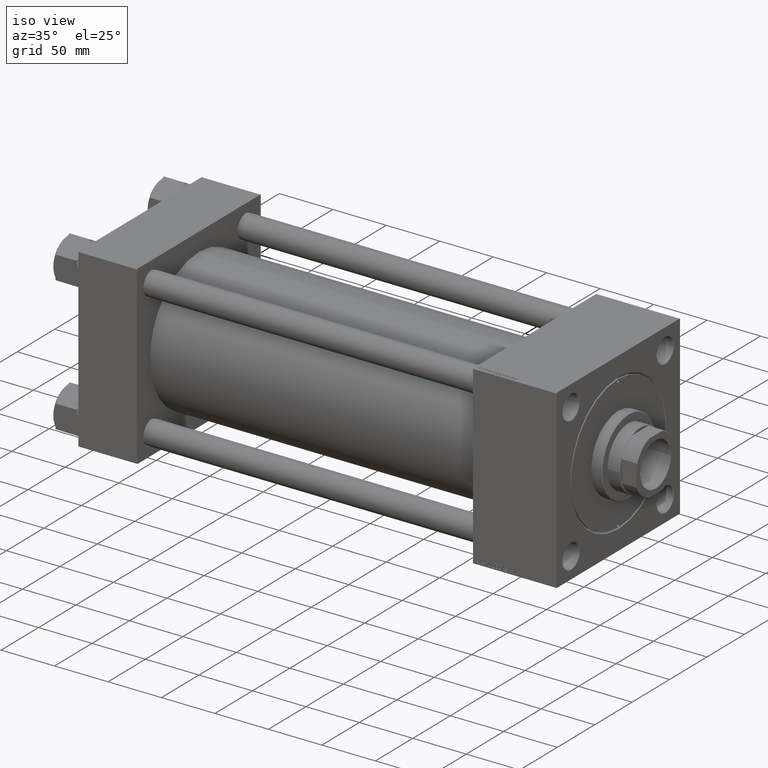
[diagram: clean part render]
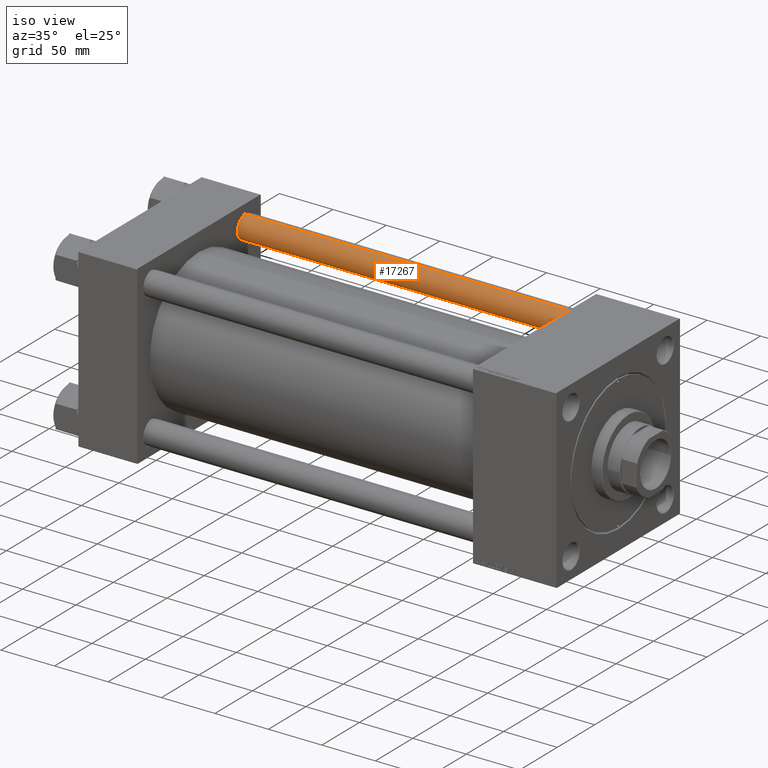
[diagram: same view with one face highlighted and labeled with its STEP entity id]
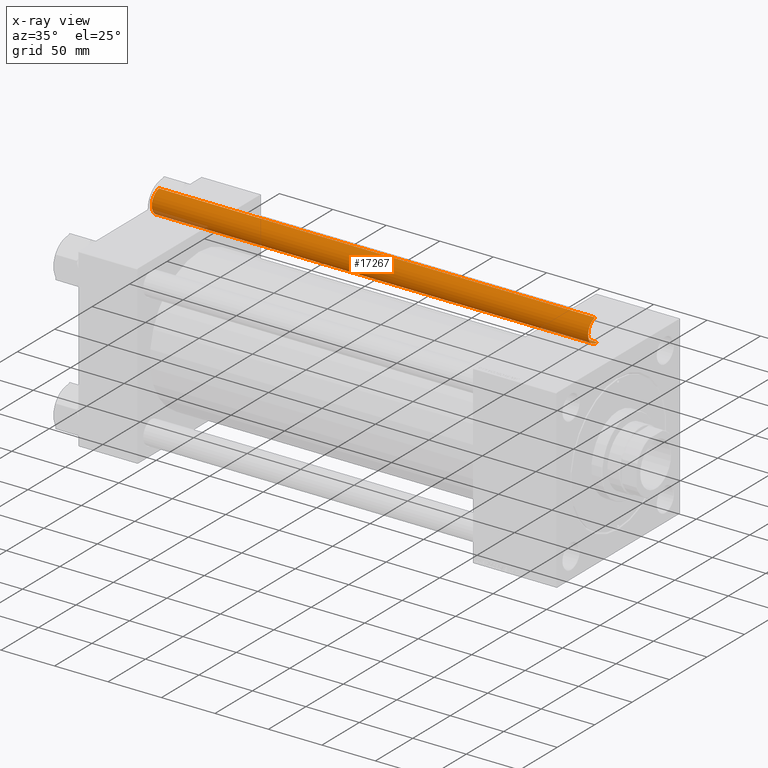
[diagram: x-ray of the same camera — body ghosted, the highlighted face saturated]
A machine part, iso view. The second image highlights one B-rep face of the part: STEP entity #17267.
The next image is the same camera in x-ray: the body ghosted, the highlighted face saturated — about 2% of this face is hidden behind the body in this view.
In plain terms, the highlighted cylindrical surface (edge-blend (fillet) strip) has radius 11 mm, axis along (-1, 0, 0).
Its self-contained STEP definition (entity closure, byte-faithful):
#126 = CIRCLE ( 'NONE', #16585, 11.00000000000000000 ) ;
#4199 = EDGE_CURVE ( 'NONE', #48759, #41377, #12937, .T. ) ;
#5241 = DIRECTION ( 'NONE',  ( -0.000000000000000000, -0.000000000000000000, 1.000000000000000000 ) ) ;
#5633 = CARTESIAN_POINT ( 'NONE',  ( 11.00000000000000000, 1.347111479062088405E-15, 409.0000000000000000 ) ) ;
#5896 = CARTESIAN_POINT ( 'NONE',  ( 11.00000000000000000, 1.347111479062088405E-15, 408.5000000000000000 ) ) ;
#6061 = DIRECTION ( 'NONE',  ( -1.000000000000000000, 0.000000000000000000, 0.000000000000000000 ) ) ;
#7745 = ORIENTED_EDGE ( 'NONE', *, *, #45331, .T. ) ;
#7936 = ORIENTED_EDGE ( 'NONE', *, *, #17798, .F. ) ;
#8552 = CARTESIAN_POINT ( 'NONE',  ( 0.000000000000000000, 0.000000000000000000, 408.5000000000000000 ) ) ;
#8571 = DIRECTION ( 'NONE',  ( -0.000000000000000000, -0.000000000000000000, -1.000000000000000000 ) ) ;
#10871 = VERTEX_POINT ( 'NONE', #14833 ) ;
#12665 = CARTESIAN_POINT ( 'NONE',  ( -11.00000000000000000, 0.000000000000000000, 0.4999999999999449329 ) ) ;
#12937 = LINE ( 'NONE', #28910, #25523 ) ;
#14499 = ORIENTED_EDGE ( 'NONE', *, *, #16336, .T. ) ;
#14824 = EDGE_LOOP ( 'NONE', ( #7936, #7745, #47570, #14499 ) ) ;
#14833 = CARTESIAN_POINT ( 'NONE',  ( 11.00000000000000000, 1.347111479062088405E-15, 0.4999999999999449329 ) ) ;
#16336 = EDGE_CURVE ( 'NONE', #41377, #10871, #39823, .T. ) ;
#16585 = AXIS2_PLACEMENT_3D ( 'NONE', #8552, #24250, #28381 ) ;
#17267 = ADVANCED_FACE ( 'NONE', ( #49801 ), #37457, .T. ) ;
#17798 = EDGE_CURVE ( 'NONE', #40748, #10871, #36521, .T. ) ;
#18381 = CARTESIAN_POINT ( 'NONE',  ( -11.00000000000000000, 0.000000000000000000, 408.5000000000000000 ) ) ;
#20814 = DIRECTION ( 'NONE',  ( -0.000000000000000000, -0.000000000000000000, -1.000000000000000000 ) ) ;
#21997 = DIRECTION ( 'NONE',  ( -0.000000000000000000, -0.000000000000000000, -1.000000000000000000 ) ) ;
#24250 = DIRECTION ( 'NONE',  ( 0.000000000000000000, 0.000000000000000000, -1.000000000000000000 ) ) ;
#25523 = VECTOR ( 'NONE', #8571, 1000.000000000000000 ) ;
#28381 = DIRECTION ( 'NONE',  ( 1.000000000000000000, 0.000000000000000000, 0.000000000000000000 ) ) ;
#28910 = CARTESIAN_POINT ( 'NONE',  ( -11.00000000000000000, 0.000000000000000000, 409.0000000000000000 ) ) ;
#36521 = LINE ( 'NONE', #5633, #48936 ) ;
#36634 = DIRECTION ( 'NONE',  ( 1.000000000000000000, 0.000000000000000000, 0.000000000000000000 ) ) ;
#37457 = CYLINDRICAL_SURFACE ( 'NONE', #48053, 11.00000000000000000 ) ;
#39823 = CIRCLE ( 'NONE', #47194, 11.00000000000000000 ) ;
#40501 = CARTESIAN_POINT ( 'NONE',  ( 0.000000000000000000, 0.000000000000000000, 0.4999999999999449329 ) ) ;
#40748 = VERTEX_POINT ( 'NONE', #5896 ) ;
#41069 = CARTESIAN_POINT ( 'NONE',  ( 0.000000000000000000, 0.000000000000000000, 409.0000000000000000 ) ) ;
#41377 = VERTEX_POINT ( 'NONE', #12665 ) ;
#45331 = EDGE_CURVE ( 'NONE', #40748, #48759, #126, .T. ) ;
#47194 = AXIS2_PLACEMENT_3D ( 'NONE', #40501, #5241, #36634 ) ;
#47570 = ORIENTED_EDGE ( 'NONE', *, *, #4199, .T. ) ;
#48053 = AXIS2_PLACEMENT_3D ( 'NONE', #41069, #21997, #6061 ) ;
#48759 = VERTEX_POINT ( 'NONE', #18381 ) ;
#48936 = VECTOR ( 'NONE', #20814, 1000.000000000000000 ) ;
#49801 = FACE_OUTER_BOUND ( 'NONE', #14824, .T. ) ;